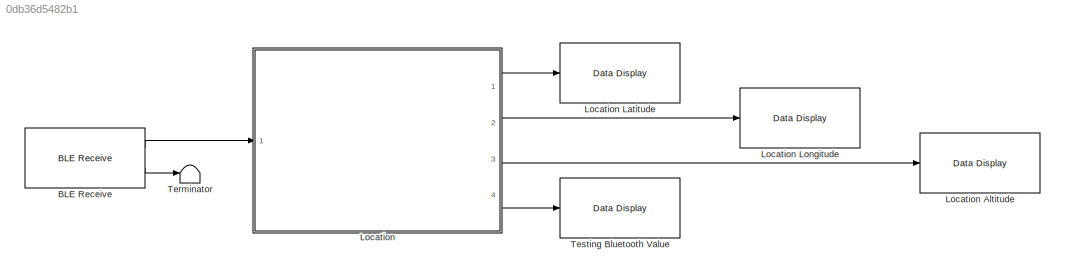
MODEL slx_0db36d5482b1
KIND model
CONFIG AbsTol = auto
CONFIG EnableMultiTasking = off
CONFIG FixedStep = auto
CONFIG MaxStep = auto
CONFIG MinStep = auto
CONFIG RelTol = 1e-3
CONFIG SampleTimeConstraint = Unconstrained
CONFIG SolverName = FixedStepDiscrete
CONFIG StartTime = 0.0
CONFIG StopTime = inf
BLOCK [Reference] BLE Receive  REF=androidcommunicationlib/BLE Receive
  Ports = [0, 2]
  SourceBlock = androidcommunicationlib/BLE Receive
  SourceProductBaseCode = ANDROID
  SourceType = codertarget.internal.androidBLEReceive
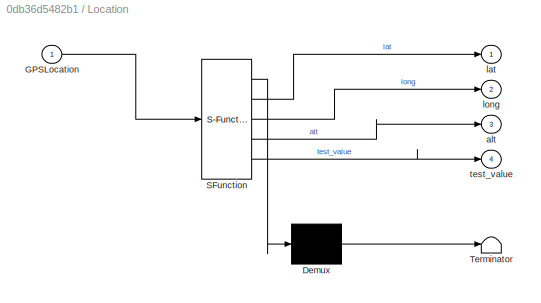
BLOCK [SubSystem] Location
  ErrorFcn = Stateflow.Translate.translate
  PermitHierarchicalResolution = ExplicitOnly
  Ports = [1, 4]
  RequestExecContextInheritance = off
  SFBlockType = MATLAB Function
  TreatAsAtomicUnit = on
BLOCK [Reference] Location Altitude  REF=androiduilib/Data Display
  Ports = [1]
  SourceBlock = androiduilib/Data Display
  SourceProductBaseCode = ANDROID
  SourceType = codertarget.internal.androidDataDisplay
BLOCK [Reference] Location Latitude  REF=androiduilib/Data Display
  Ports = [1]
  SourceBlock = androiduilib/Data Display
  SourceProductBaseCode = ANDROID
  SourceType = codertarget.internal.androidDataDisplay
BLOCK [Reference] Location Longitude  REF=androiduilib/Data Display
  Ports = [1]
  SourceBlock = androiduilib/Data Display
  SourceProductBaseCode = ANDROID
  SourceType = codertarget.internal.androidDataDisplay
BLOCK [Demux] Location/ Demux 
  Outputs = 1
  Ports = [1, 1]
BLOCK [S-Function] Location/ SFunction 
  EnableBusSupport = on
  FunctionName = sf_sfun
  PortCounts = [1 5]
  Ports = [1, 5]
  SFcnIsStateOwnerBlock = off
  SFunctionDeploymentMode = off
  Tag = Stateflow S-Function 1
BLOCK [Terminator] Location/ Terminator 
BLOCK [Inport] Location/GPSLocation
BLOCK [Outport] Location/alt
  Port = 3
BLOCK [Outport] Location/lat
  VectorParamsAs1DForOutWhenUnconnected = off
BLOCK [Outport] Location/long
  Port = 2
BLOCK [Outport] Location/test_value
  Port = 4
BLOCK [Terminator] Terminator
BLOCK [Reference] Testing Bluetooth Value  REF=androiduilib/Data Display
  Ports = [1]
  SourceBlock = androiduilib/Data Display
  SourceProductBaseCode = ANDROID
  SourceType = codertarget.internal.androidDataDisplay
LINE BLE Receive:1 -> Location:1
LINE BLE Receive:2 -> Terminator:1
LINE Location:1 -> Location Latitude:1
LINE Location:2 -> Location Longitude:1
LINE Location:3 -> Location Altitude:1
LINE Location:4 -> Testing Bluetooth Value:1
CHART Location states=1 transitions=1
  STATE_LABEL 'eML_blk_kernel()'
  STATE_LABEL 'SCRIPT:\nfunction [lat, long, alt, test_value] = GetGPSLocation(GPSLocation)\n    \n\n    % Convert uint8 to int8 (test_value)\n    test_value_uint8 = GPSLocation(1);   \n    isNegative = int8(bitget(test_value_uint8,8));\n    test_value = int8(bitset(test_value_uint8,8,0)) +  (-2^7)*isNegative;    \n\n    % Get upper and lower bits of lat, long and alt\n    lower_lat=GPSLocation(2);\n    upper_lat=GPSLocati...<+636ch>'
CHART  states=0 transitions=0
